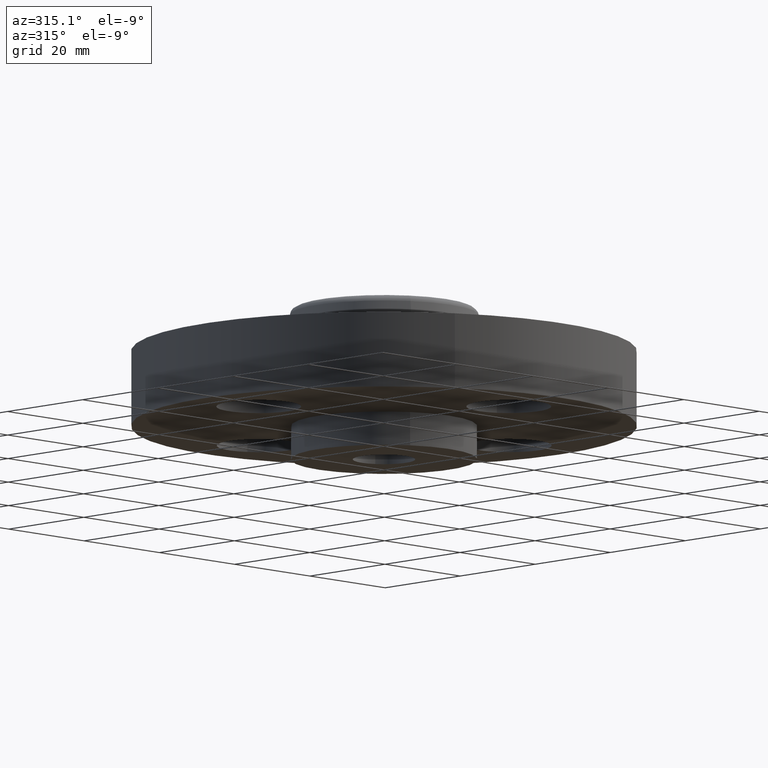
[diagram: clean part render]
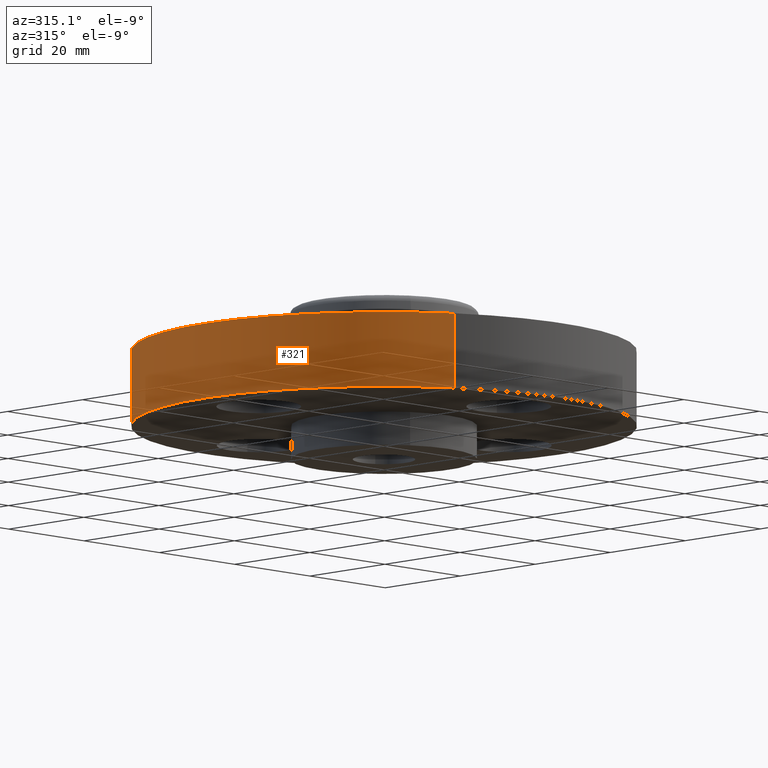
[diagram: same view with one face highlighted and labeled with its STEP entity id]
A machine part, auxiliary view. The second image highlights one B-rep face of the part: STEP entity #321.
In plain terms, the highlighted cylindrical surface (partial cylindrical patch) has radius 47.625 mm, axis along (0, 0, -1).
Its self-contained STEP definition (entity closure, byte-faithful):
#198=AXIS2_PLACEMENT_3D('Circle Axis2P3D',#196,#197,$) ;
#294=AXIS2_PLACEMENT_3D('Cylinder Axis2P3D',#291,#292,#293) ;
#305=AXIS2_PLACEMENT_3D('Circle Axis2P3D',#303,#304,$) ;
#196=CARTESIAN_POINT('Axis2P3D Location',(0.,0.,0.)) ;
#200=CARTESIAN_POINT('Vertex',(-0.898922884886,-1.64546730355,0.)) ;
#202=CARTESIAN_POINT('Vertex',(0.898922884886,1.64546730355,0.)) ;
#291=CARTESIAN_POINT('Axis2P3D Location',(0.,0.,0.315000000001)) ;
#296=CARTESIAN_POINT('Line Origine',(-0.898922884886,-1.64546730355,0.280000000001)) ;
#300=CARTESIAN_POINT('Vertex',(-0.898922884886,-1.64546730355,0.560000000002)) ;
#303=CARTESIAN_POINT('Axis2P3D Location',(0.,0.,0.560000000002)) ;
#307=CARTESIAN_POINT('Vertex',(0.898922884886,1.64546730355,0.560000000002)) ;
#310=CARTESIAN_POINT('Line Origine',(0.898922884886,1.64546730355,0.280000000001)) ;
#197=DIRECTION('Axis2P3D Direction',(0.,0.,-0.0393700787402)) ;
#292=DIRECTION('Axis2P3D Direction',(0.,0.,-0.0393700787402)) ;
#293=DIRECTION('Axis2P3D XDirection',(0.0188750212049,0.0345504945626,0.)) ;
#297=DIRECTION('Vector Direction',(0.,0.,-0.0393700787402)) ;
#304=DIRECTION('Axis2P3D Direction',(0.,0.,-0.0393700787402)) ;
#311=DIRECTION('Vector Direction',(0.,0.,-0.0393700787402)) ;
#298=VECTOR('Line Direction',#297,0.0393700787402) ;
#312=VECTOR('Line Direction',#311,0.0393700787402) ;
#316=ORIENTED_EDGE('',*,*,#204,.F.) ;
#317=ORIENTED_EDGE('',*,*,#302,.T.) ;
#318=ORIENTED_EDGE('',*,*,#309,.T.) ;
#319=ORIENTED_EDGE('',*,*,#314,.F.) ;
#321=ADVANCED_FACE('PartBody',(#320),#295,.T.) ;
#199=CIRCLE('generated circle',#198,1.87500000001) ;
#306=CIRCLE('generated circle',#305,1.87500000001) ;
#295=CYLINDRICAL_SURFACE('generated cylinder',#294,1.87500000001) ;
#204=EDGE_CURVE('',#201,#203,#199,.T.) ;
#302=EDGE_CURVE('',#201,#301,#299,.F.) ;
#309=EDGE_CURVE('',#301,#308,#306,.T.) ;
#314=EDGE_CURVE('',#203,#308,#313,.F.) ;
#315=EDGE_LOOP('',(#316,#317,#318,#319)) ;
#320=FACE_OUTER_BOUND('',#315,.T.) ;
#299=LINE('Line',#296,#298) ;
#313=LINE('Line',#310,#312) ;
#201=VERTEX_POINT('',#200) ;
#203=VERTEX_POINT('',#202) ;
#301=VERTEX_POINT('',#300) ;
#308=VERTEX_POINT('',#307) ;